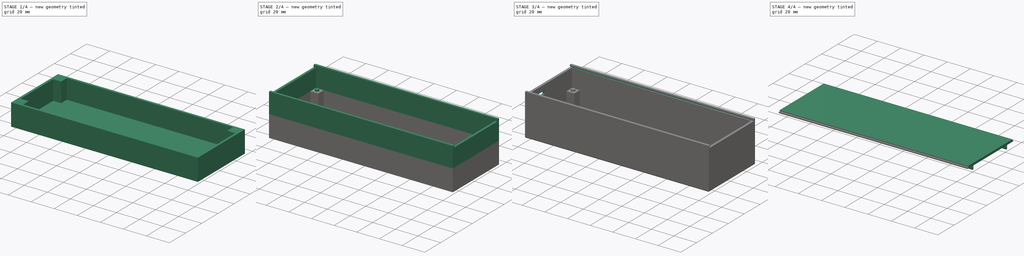
[diagram: build sequence overview — one tinted view per stage of 4, left to right]
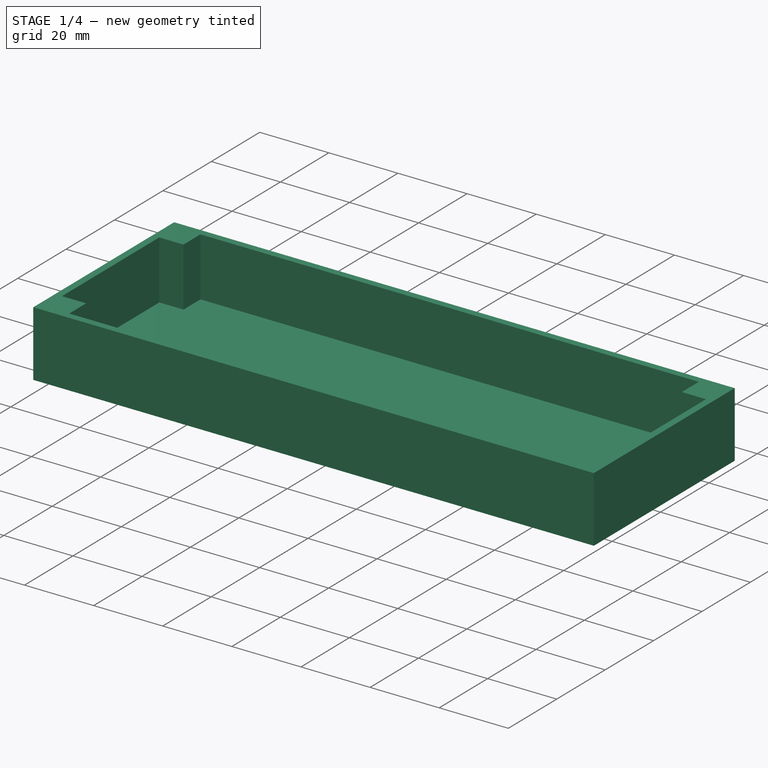
[diagram: stage 1 of 4 — iso view after this stage's code; geometry added in this stage tinted green]
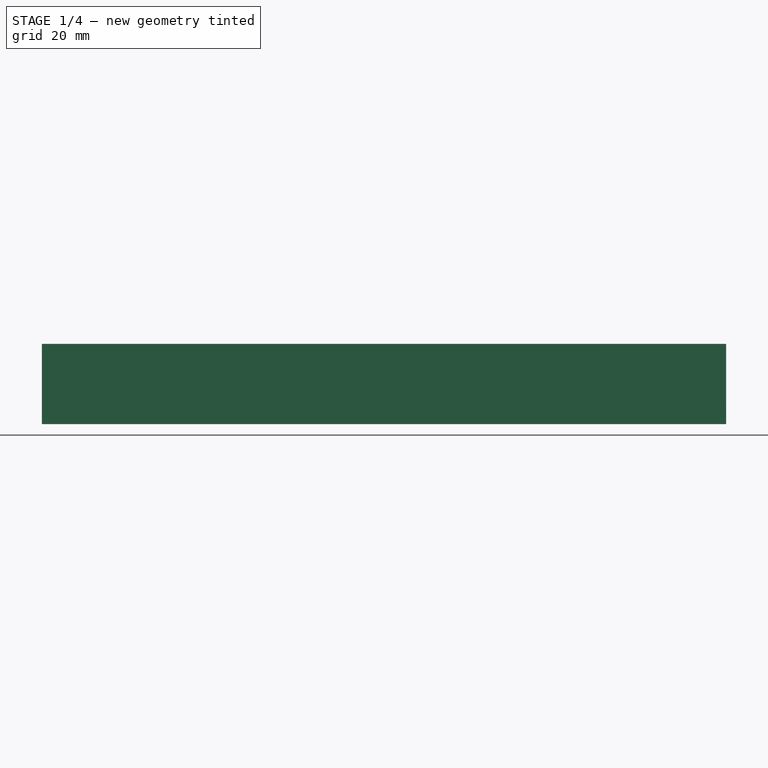
[diagram: stage 1 of 4 — front view after this stage's code; geometry added in this stage tinted green]
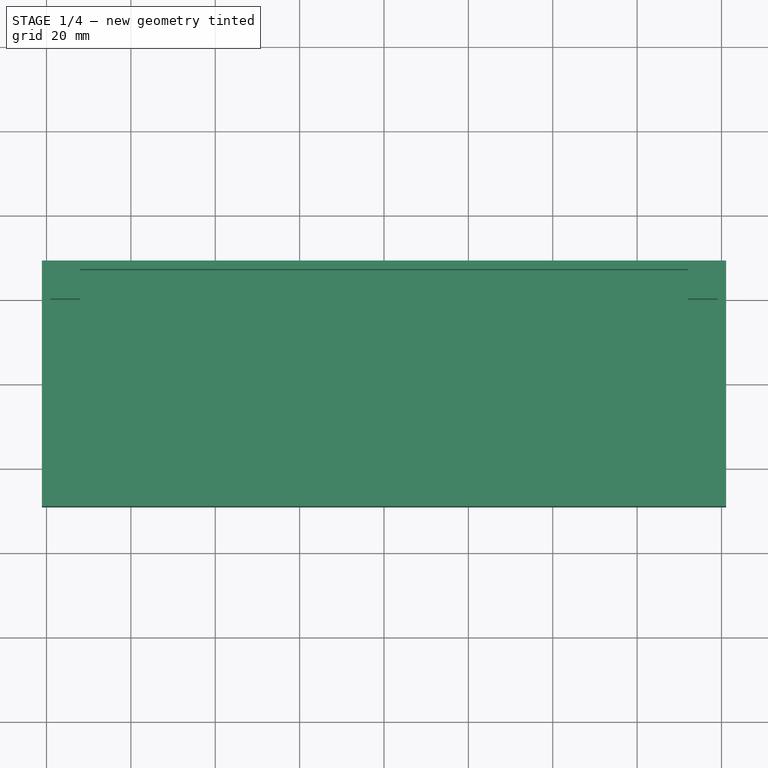
[diagram: stage 1 of 4 — top view after this stage's code; geometry added in this stage tinted green]
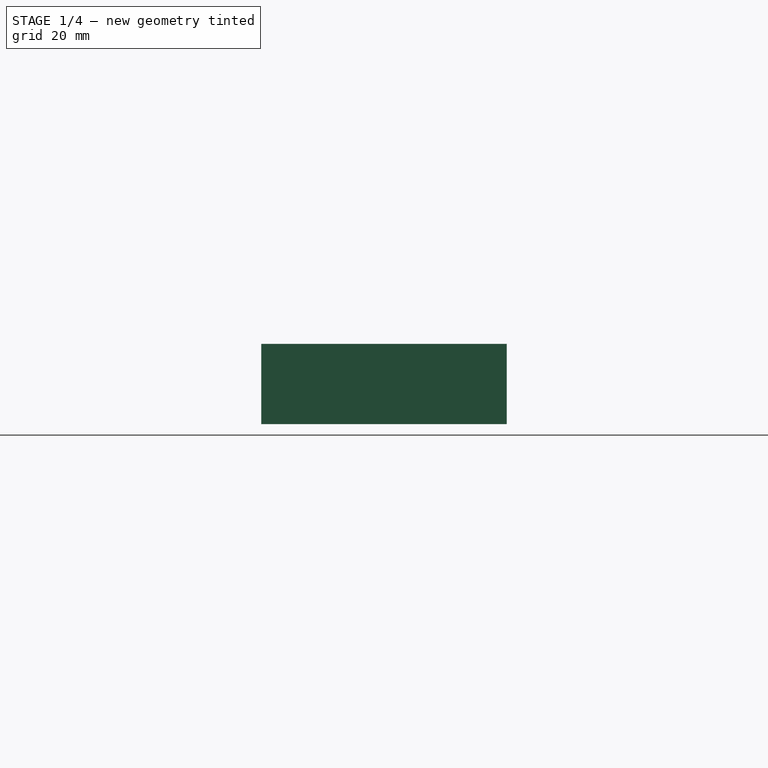
[diagram: stage 1 of 4 — right view after this stage's code; geometry added in this stage tinted green]
FCSTD DOCUMENT  (FreeCAD 0.20R29410 (Git))
Label: case2
License: All rights reserved
LicenseURL: http://en.wikipedia.org/wiki/All_rights_reserved
objects: Sketcher::SketchObject×11, PartDesign::ShapeBinder×7, PartDesign::Pad×7, PartDesign::Pocket×5, PartDesign::Body×2, Part::Feature×1, PartDesign::Fillet×1
note: 47 computed .brp shape members not serialized (recipe doc carries the construction recipe); baked Part::Feature solids carry a one-line shape summary decoded from their .brp

FEATURE [Part::Feature] Feature  label="clock_top"
  shape: bbox 158.1 x 54.08 x 46.42 mm, 23406 faces, 814 solids (baked)
FEATURE [PartDesign::ShapeBinder] ShapeBinder
  Support = -> [Feature]
  TraceSupport = false
FEATURE [PartDesign::ShapeBinder] ShapeBinder001
  Support = -> [Feature]
  TraceSupport = false
FEATURE [Sketcher::SketchObject] Sketch
  ExternalGeometry = -> [ShapeBinder]
  FullyConstrained = true
  MapMode = 5
  Placement = pos=(0,0,0) rot=(1,0,0;3.14159rad)
  Support = -> [ShapeBinder001]
  sketch-geometry (8):
    g0: LineSegment StartX=-79.1 StartY=27.1 StartZ=0 EndX=79.1 EndY=27.1 EndZ=0
    g1: LineSegment StartX=79.1 StartY=27.1 StartZ=0 EndX=79.1 EndY=-27.1 EndZ=0
    g2: LineSegment StartX=79.1 StartY=-27.1 StartZ=0 EndX=-79.1 EndY=-27.1 EndZ=0
    g3: LineSegment StartX=-79.1 StartY=-27.1 StartZ=0 EndX=-79.1 EndY=27.1 EndZ=0
    g4: LineSegment StartX=-81.1 StartY=29.1 StartZ=0 EndX=81.1 EndY=29.1 EndZ=0
    g5: LineSegment StartX=81.1 StartY=29.1 StartZ=0 EndX=81.1 EndY=-29.1 EndZ=0
    g6: LineSegment StartX=81.1 StartY=-29.1 StartZ=0 EndX=-81.1 EndY=-29.1 EndZ=0
    g7: LineSegment StartX=-81.1 StartY=-29.1 StartZ=0 EndX=-81.1 EndY=29.1 EndZ=0
  constraints (24):
    c: Coincident(g0,g1)
    c: Coincident(g1,g2)
    c: Coincident(g2,g3)
    c: Coincident(g3,g0)
    c: Horizontal(g0)
    c: Horizontal(g2)
    c: Vertical(g1)
    c: Vertical(g3)
    c: Distance(g-4,g2) = 0.1
    c: Distance(g-4,g1) = 0.1
    c: Distance(g-4,g3) = 0.1
    c: Distance(g-3,g0) = 0.1
    c: Coincident(g4,g5)
    c: Coincident(g5,g6)
    c: Coincident(g6,g7)
    c: Coincident(g7,g4)
    c: Horizontal(g4)
    c: Horizontal(g6)
    c: Vertical(g5)
    c: Vertical(g7)
    c: Distance(g2,g6) = 2
    c: Distance(g5,g1) = 2
    c: Distance(g0,g4) = 2
    c: Distance(g0,g7) = 2
FEATURE [PartDesign::Pad] Pad
  Direction = (0,0,-1)
  Length = 17
  Length2 = 10
  Profile = -> Sketch
  ReferenceAxis = -> Sketch [N_Axis]
  Type = 0
FEATURE [Sketcher::SketchObject] Sketch001
  ExternalGeometry = -> [Pad]
  FullyConstrained = true
  MapMode = 5
  Placement = pos=(0,0,-17) rot=(1,0,0;3.14159rad)
  Support = -> [Pad]
  sketch-geometry (4):
    g0: LineSegment StartX=-81.1 StartY=29.1 StartZ=0 EndX=81.1 EndY=29.1 EndZ=0
    g1: LineSegment StartX=81.1 StartY=29.1 StartZ=0 EndX=81.1 EndY=-29.1 EndZ=0
    g2: LineSegment StartX=81.1 StartY=-29.1 StartZ=0 EndX=-81.1 EndY=-29.1 EndZ=0
    g3: LineSegment StartX=-81.1 StartY=-29.1 StartZ=0 EndX=-81.1 EndY=29.1 EndZ=0
  constraints (10):
    c: Coincident(g0,g1)
    c: Coincident(g1,g2)
    c: Coincident(g2,g3)
    c: Coincident(g3,g0)
    c: Horizontal(g0)
    c: Horizontal(g2)
    c: Vertical(g1)
    c: Vertical(g3)
    c: Coincident(g0,g-4)
    c: Coincident(g1,g-3)
FEATURE [PartDesign::Pad] Pad001
  BaseFeature = -> Pad
  Direction = (0,0,-1)
  Length = 2
  Length2 = 10
  Profile = -> Sketch001
  ReferenceAxis = -> Sketch001 [N_Axis]
  Type = 0
FEATURE [Sketcher::SketchObject] Sketch002
  ExternalGeometry = -> [Pad001]
  FullyConstrained = true
  MapMode = 5
  Placement = pos=(0,0,-17) rot=(0,0,1;0rad)
  Support = -> [Pad001]
  sketch-geometry (16):
    g0: LineSegment StartX=-72.1 StartY=20.1 StartZ=0 EndX=-79.1 EndY=20.1 EndZ=0
    g1: LineSegment StartX=-79.1 StartY=20.1 StartZ=0 EndX=-79.1 EndY=27.1 EndZ=0
    g2: LineSegment StartX=-79.1 StartY=27.1 StartZ=0 EndX=-72.1 EndY=27.1 EndZ=0
    g3: LineSegment StartX=-72.1 StartY=27.1 StartZ=0 EndX=-72.1 EndY=20.1 EndZ=0
    g4: LineSegment StartX=79.1 StartY=20.1 StartZ=0 EndX=72.1 EndY=20.1 EndZ=0
    g5: LineSegment StartX=72.1 StartY=20.1 StartZ=0 EndX=72.1 EndY=27.1 EndZ=0
    g6: LineSegment StartX=72.1 StartY=27.1 StartZ=0 EndX=79.1 EndY=27.1 EndZ=0
    g7: LineSegment StartX=79.1 StartY=27.1 StartZ=0 EndX=79.1 EndY=20.1 EndZ=0
    g8: LineSegment StartX=-72.1 StartY=-27.1 StartZ=0 EndX=-79.1 EndY=-27.1 EndZ=0
    g9: LineSegment StartX=-79.1 StartY=-27.1 StartZ=0 EndX=-79.1 EndY=-20.1 EndZ=0
    g10: LineSegment StartX=-79.1 StartY=-20.1 StartZ=0 EndX=-72.1 EndY=-20.1 EndZ=0
    g11: LineSegment StartX=-72.1 StartY=-20.1 StartZ=0 EndX=-72.1 EndY=-27.1 EndZ=0
    g12: LineSegment StartX=79.1 StartY=-27.1 StartZ=0 EndX=72.1 EndY=-27.1 EndZ=0
    g13: LineSegment StartX=72.1 StartY=-27.1 StartZ=0 EndX=72.1 EndY=-20.1 EndZ=0
    g14: LineSegment StartX=72.1 StartY=-20.1 StartZ=0 EndX=79.1 EndY=-20.1 EndZ=0
    g15: LineSegment StartX=79.1 StartY=-20.1 StartZ=0 EndX=79.1 EndY=-27.1 EndZ=0
  constraints (44):
    c: Coincident(g0,g1)
    c: Coincident(g1,g2)
    c: Coincident(g2,g3)
    c: Coincident(g3,g0)
    c: Horizontal(g0)
    c: Horizontal(g2)
    c: Vertical(g1)
    c: Vertical(g3)
    c: Coincident(g1,g-3)
    c: Distance(g3) = 7
    c: Distance(g0) = 7
    c: Coincident(g4,g5)
    c: Coincident(g5,g6)
    c: Coincident(g6,g7)
    c: Coincident(g7,g4)
    c: Horizontal(g4)
    c: Horizontal(g6)
    c: Vertical(g5)
    c: Vertical(g7)
    c: Coincident(g-4,g6)
    c: Distance(g4) = 7
    c: Distance(g5) = 7
    c: Coincident(g8,g9)
    c: Coincident(g9,g10)
    c: Coincident(g10,g11)
    c: Coincident(g11,g8)
    c: Horizontal(g8)
    c: Horizontal(g10)
    c: Vertical(g9)
    c: Vertical(g11)
    c: Coincident(g-6,g8)
    c: Distance(g11) = 7
    c: Distance(g10) = 7
    c: Coincident(g12,g13)
    c: Coincident(g13,g14)
    c: Coincident(g14,g15)
    c: Coincident(g15,g12)
    c: Horizontal(g12)
    c: Horizontal(g14)
    c: Vertical(g13)
    c: Vertical(g15)
    c: Coincident(g-5,g12)
    c: Distance(g14) = 7
    c: Distance(g13) = 7
FEATURE [PartDesign::Pad] Pad002
  BaseFeature = -> Pad001
  Direction = (0,0,1)
  Length = 17
  Length2 = 10
  Profile = -> Sketch002
  ReferenceAxis = -> Sketch002 [N_Axis]
  Type = 0
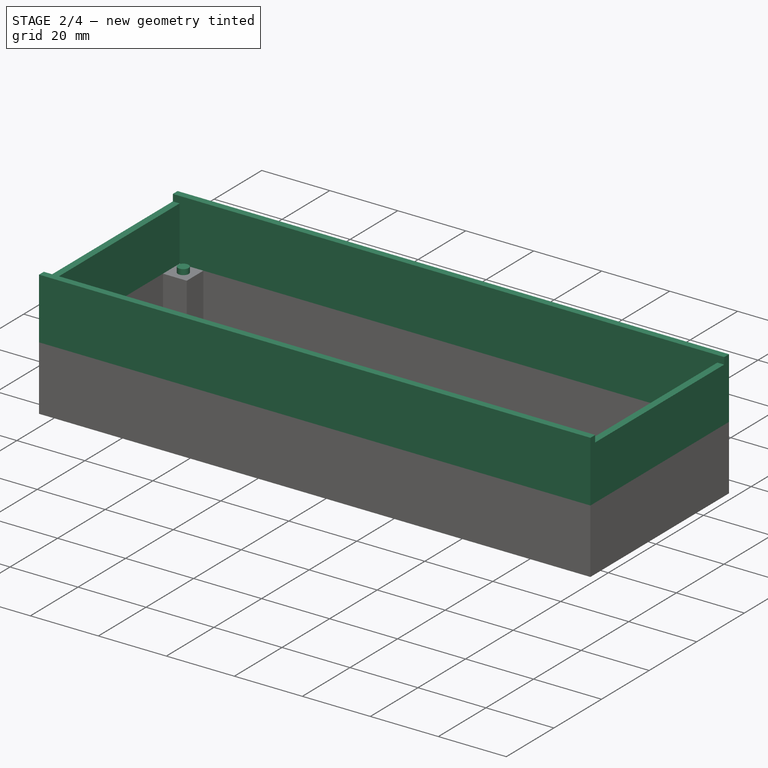
[diagram: stage 2 of 4 — iso view after this stage's code; geometry added in this stage tinted green]
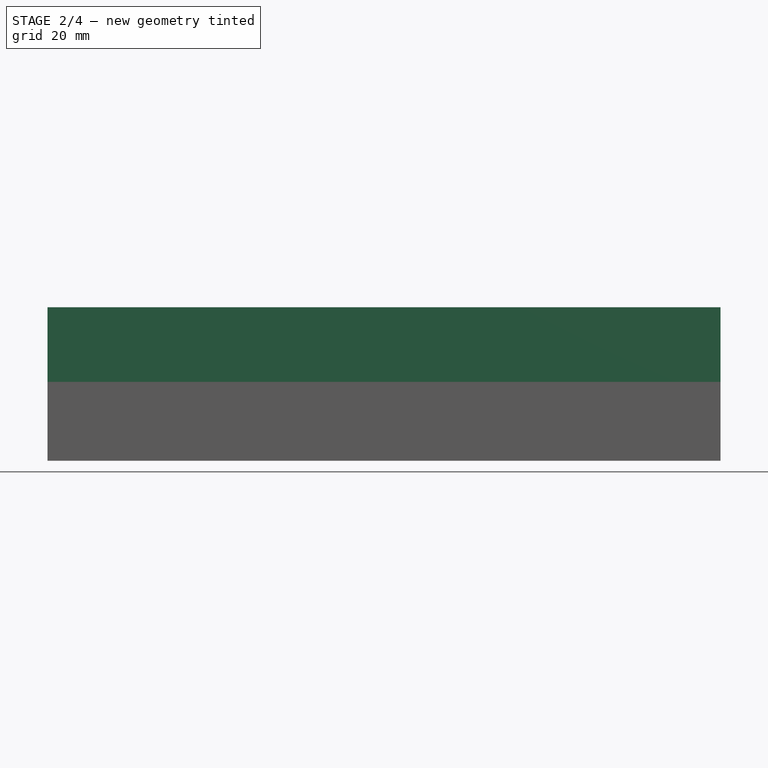
[diagram: stage 2 of 4 — front view after this stage's code; geometry added in this stage tinted green]
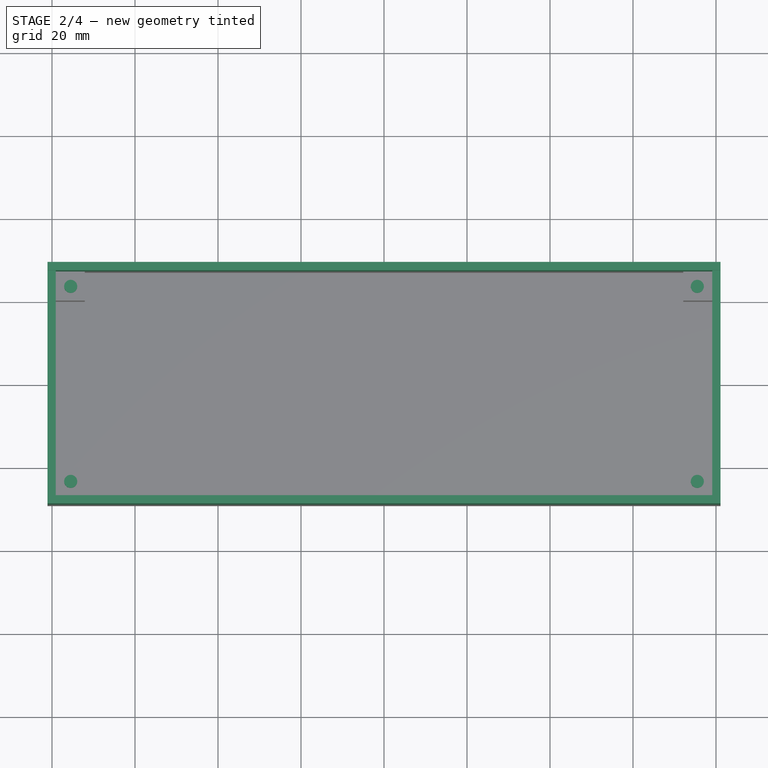
[diagram: stage 2 of 4 — top view after this stage's code; geometry added in this stage tinted green]
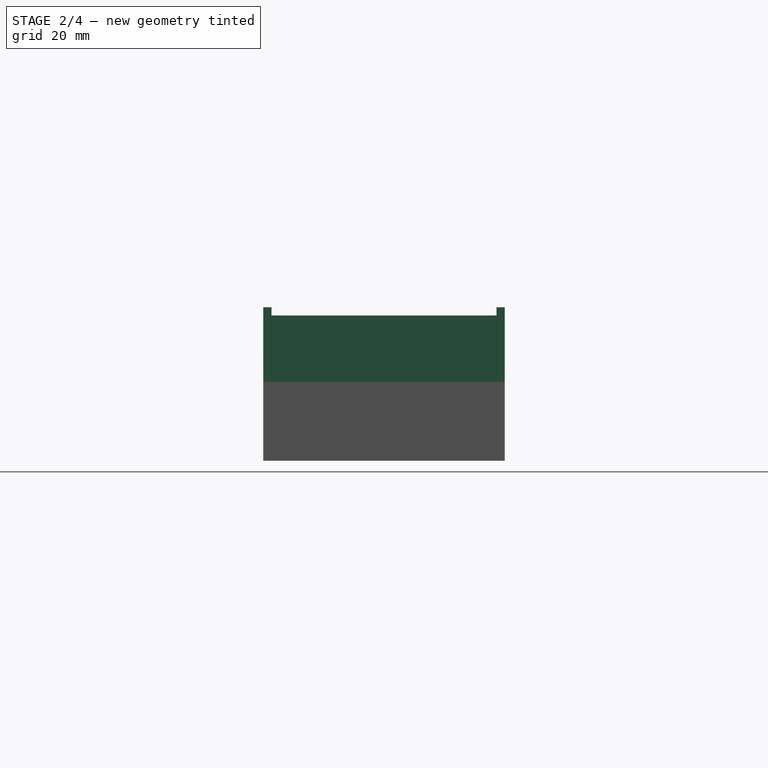
[diagram: stage 2 of 4 — right view after this stage's code; geometry added in this stage tinted green]
FEATURE [Sketcher::SketchObject] Sketch003
  ExternalGeometry = -> [ShapeBinder]
  FullyConstrained = true
  MapMode = 5
  Placement = pos=(0,0,3.6e-15) rot=(0,0,1;0rad)
  Support = -> [Pad002]
  sketch-geometry (4):
    g0: Circle CenterX=-75.5 CenterY=23.5 CenterZ=0 NormalX=0 NormalY=0 NormalZ=1 AngleXU=0 Radius=1.575
    g1: Circle CenterX=-75.5 CenterY=-23.5 CenterZ=0 NormalX=0 NormalY=0 NormalZ=1 AngleXU=0 Radius=1.575
    g2: Circle CenterX=75.5 CenterY=-23.5 CenterZ=0 NormalX=0 NormalY=0 NormalZ=1 AngleXU=0 Radius=1.575
    g3: Circle CenterX=75.5 CenterY=23.5 CenterZ=0 NormalX=0 NormalY=0 NormalZ=1 AngleXU=0 Radius=1.575
  constraints (8):
    c: Coincident(g-3,g0)
    c: Diameter(g0) = 3.15
    c: Coincident(g-4,g1)
    c: Diameter(g1) = 3.15
    c: Coincident(g-5,g2)
    c: Diameter(g2) = 3.15
    c: Coincident(g3,g-6)
    c: Diameter(g3) = 3.15
FEATURE [PartDesign::Pad] Pad003
  BaseFeature = -> Pad002
  Direction = (0,0,1)
  Length = 1.6
  Length2 = 10
  Profile = -> Sketch003
  ReferenceAxis = -> Sketch003 [N_Axis]
  Type = 0
FEATURE [Sketcher::SketchObject] Sketch004
  ExternalGeometry = -> [Pad003]
  FullyConstrained = true
  MapMode = 5
  Support = -> [Pad003]
  sketch-geometry (8):
    g0: LineSegment StartX=-79.1 StartY=27.1 StartZ=0 EndX=79.1 EndY=27.1 EndZ=0
    g1: LineSegment StartX=79.1 StartY=27.1 StartZ=0 EndX=79.1 EndY=-27.1 EndZ=0
    g2: LineSegment StartX=79.1 StartY=-27.1 StartZ=0 EndX=-79.1 EndY=-27.1 EndZ=0
    g3: LineSegment StartX=-79.1 StartY=-27.1 StartZ=0 EndX=-79.1 EndY=27.1 EndZ=0
    g4: LineSegment StartX=-81.1 StartY=29.1 StartZ=0 EndX=81.1 EndY=29.1 EndZ=0
    g5: LineSegment StartX=81.1 StartY=29.1 StartZ=0 EndX=81.1 EndY=-29.1 EndZ=0
    g6: LineSegment StartX=81.1 StartY=-29.1 StartZ=0 EndX=-81.1 EndY=-29.1 EndZ=0
    g7: LineSegment StartX=-81.1 StartY=-29.1 StartZ=0 EndX=-81.1 EndY=29.1 EndZ=0
  constraints (20):
    c: Coincident(g0,g1)
    c: Coincident(g1,g2)
    c: Coincident(g2,g3)
    c: Coincident(g3,g0)
    c: Horizontal(g0)
    c: Horizontal(g2)
    c: Vertical(g1)
    c: Vertical(g3)
    c: Coincident(g4,g5)
    c: Coincident(g5,g6)
    c: Coincident(g6,g7)
    c: Coincident(g7,g4)
    c: Horizontal(g4)
    c: Horizontal(g6)
    c: Vertical(g5)
    c: Vertical(g7)
    c: Coincident(g0,g-4)
    c: Coincident(g4,g-5)
    c: Coincident(g1,g-6)
    c: Coincident(g5,g-7)
FEATURE [PartDesign::Pad] Pad004
  BaseFeature = -> Pad003
  Direction = (0,0,1)
  Length = 16
  Length2 = 10
  Profile = -> Sketch004
  ReferenceAxis = -> Sketch004 [N_Axis]
  Type = 0
FEATURE [Sketcher::SketchObject] Sketch005
  ExternalGeometry = -> [Pad004]
  FullyConstrained = true
  MapMode = 5
  Placement = pos=(0,0,16) rot=(0,0,1;0rad)
  Support = -> [Pad004]
  sketch-geometry (8):
    g0: LineSegment StartX=-81.1 StartY=-29.1 StartZ=0 EndX=81.1 EndY=-29.1 EndZ=0
    g1: LineSegment StartX=81.1 StartY=-29.1 StartZ=0 EndX=81.1 EndY=-27.1 EndZ=0
    g2: LineSegment StartX=81.1 StartY=-27.1 StartZ=0 EndX=-81.1 EndY=-27.1 EndZ=0
    g3: LineSegment StartX=-81.1 StartY=-27.1 StartZ=0 EndX=-81.1 EndY=-29.1 EndZ=0
    g4: LineSegment StartX=81.1 StartY=29.1 StartZ=0 EndX=-81.1 EndY=29.1 EndZ=0
    g5: LineSegment StartX=-81.1 StartY=29.1 StartZ=0 EndX=-81.1 EndY=27.1 EndZ=0
    g6: LineSegment StartX=-81.1 StartY=27.1 StartZ=0 EndX=81.1 EndY=27.1 EndZ=0
    g7: LineSegment StartX=81.1 StartY=27.1 StartZ=0 EndX=81.1 EndY=29.1 EndZ=0
  constraints (22):
    c: Coincident(g0,g1)
    c: Coincident(g1,g2)
    c: Coincident(g2,g3)
    c: Coincident(g3,g0)
    c: Horizontal(g0)
    c: Horizontal(g2)
    c: Vertical(g1)
    c: Vertical(g3)
    c: Coincident(g0,g-4)
    c: PointOnObject(g-3,g2)
    c: PointOnObject(g1,g-6)
    c: Coincident(g4,g5)
    c: Coincident(g5,g6)
    c: Coincident(g6,g7)
    c: Coincident(g7,g4)
    c: Horizontal(g4)
    c: Horizontal(g6)
    c: Vertical(g5)
    c: Vertical(g7)
    c: Coincident(g4,g-6)
    c: PointOnObject(g4,g-9)
    c: PointOnObject(g-10,g6)
FEATURE [PartDesign::Pad] Pad005
  BaseFeature = -> Pad004
  Direction = (0,0,1)
  Length = 2
  Length2 = 10
  Profile = -> Sketch005
  ReferenceAxis = -> Sketch005 [N_Axis]
  Type = 0
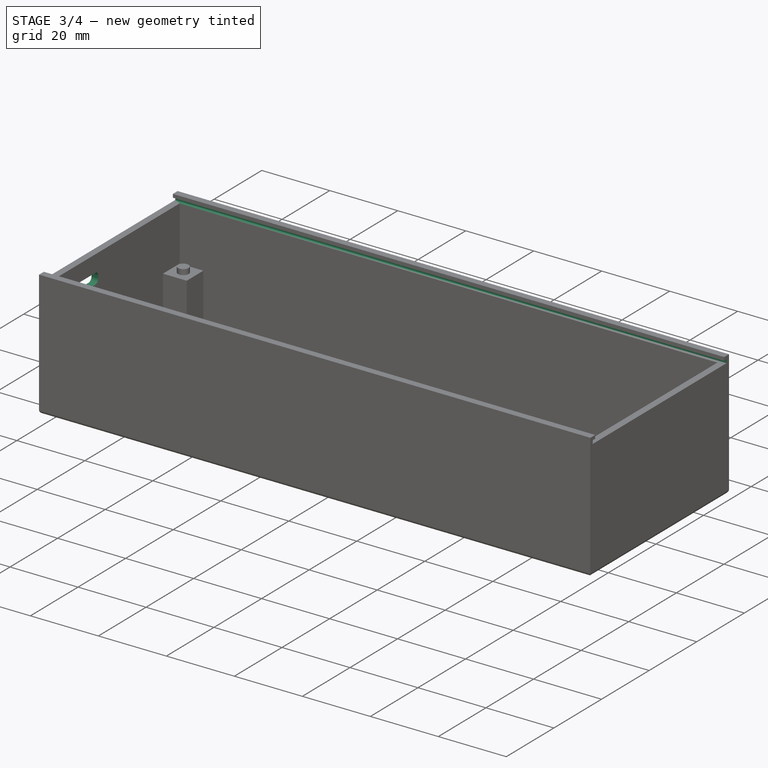
[diagram: stage 3 of 4 — iso view after this stage's code; geometry added in this stage tinted green]
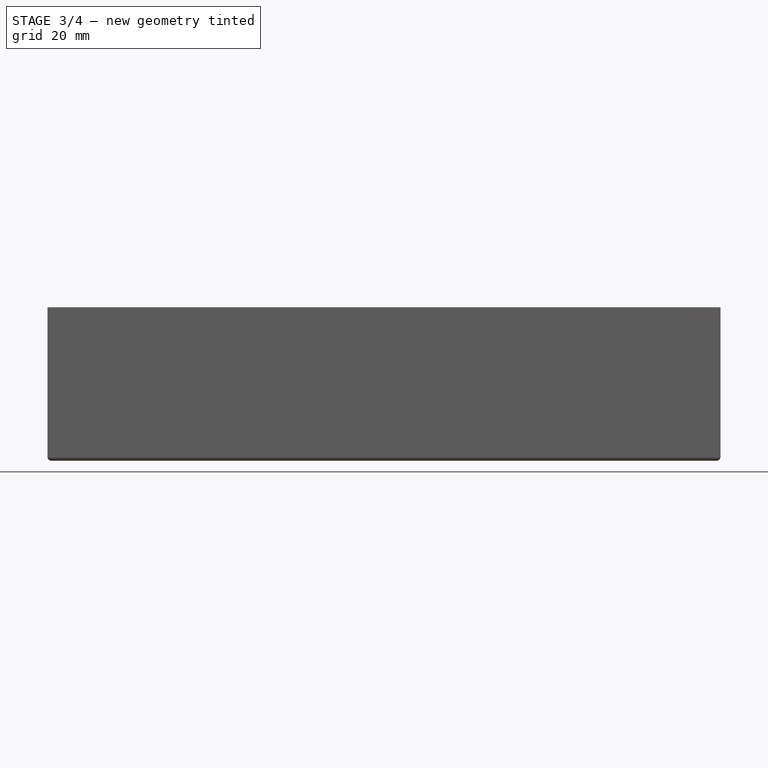
[diagram: stage 3 of 4 — front view after this stage's code; geometry added in this stage tinted green]
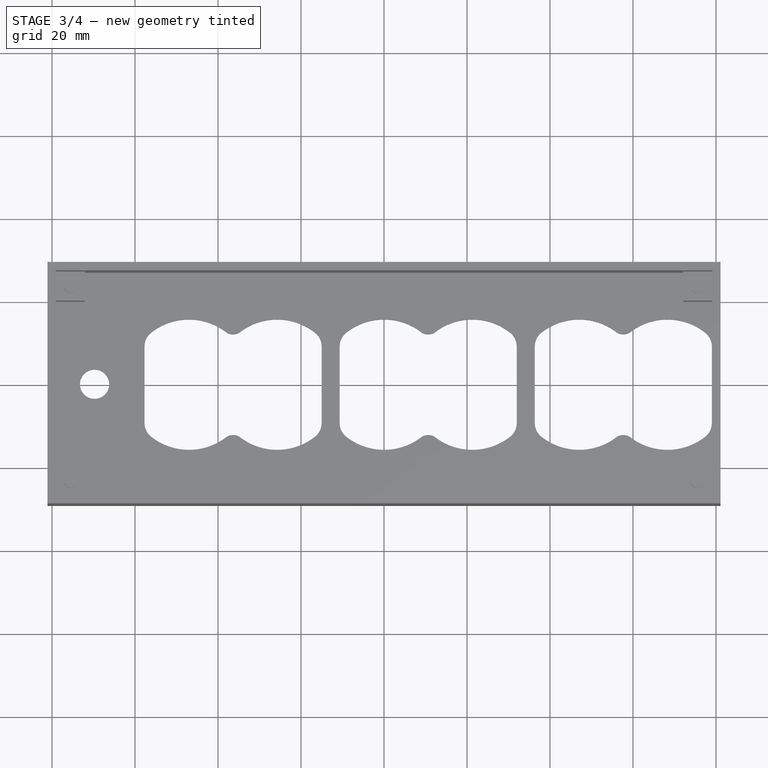
[diagram: stage 3 of 4 — top view after this stage's code; geometry added in this stage tinted green]
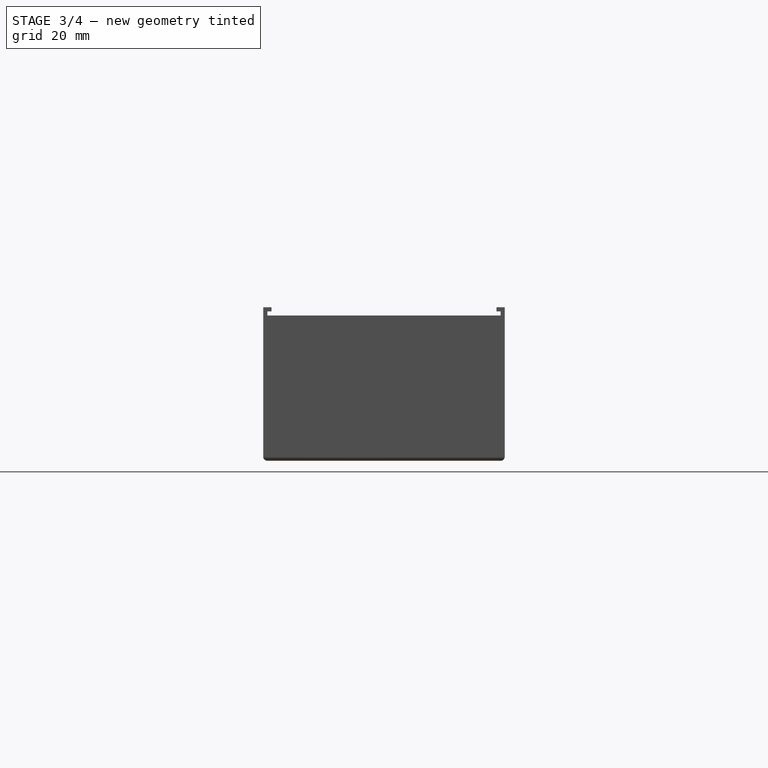
[diagram: stage 3 of 4 — right view after this stage's code; geometry added in this stage tinted green]
FEATURE [Sketcher::SketchObject] Sketch006
  ExternalGeometry = -> [Pad005]
  FullyConstrained = true
  MapMode = 5
  Placement = pos=(81.1,0,0) rot=(0.57735,0.57735,0.57735;2.0944rad)
  Support = -> [Pad005]
  sketch-geometry (8):
    g0: LineSegment StartX=-27.1 StartY=16 StartZ=0 EndX=-28.1 EndY=16 EndZ=0
    g1: LineSegment StartX=-28.1 StartY=16 StartZ=0 EndX=-28.1 EndY=17 EndZ=0
    g2: LineSegment StartX=-28.1 StartY=17 StartZ=0 EndX=-27.1 EndY=17 EndZ=0
    g3: LineSegment StartX=-27.1 StartY=17 StartZ=0 EndX=-27.1 EndY=16 EndZ=0
    g4: LineSegment StartX=27.1 StartY=16 StartZ=0 EndX=28.1 EndY=16 EndZ=0
    g5: LineSegment StartX=28.1 StartY=16 StartZ=0 EndX=28.1 EndY=17 EndZ=0
    g6: LineSegment StartX=28.1 StartY=17 StartZ=0 EndX=27.1 EndY=17 EndZ=0
    g7: LineSegment StartX=27.1 StartY=17 StartZ=0 EndX=27.1 EndY=16 EndZ=0
  constraints (24):
    c: Coincident(g0,g1)
    c: Coincident(g1,g2)
    c: Coincident(g2,g3)
    c: Coincident(g3,g0)
    c: Horizontal(g0)
    c: Horizontal(g2)
    c: Vertical(g1)
    c: Vertical(g3)
    c: PointOnObject(g0,g-3)
    c: Coincident(g4,g5)
    c: Coincident(g5,g6)
    c: Coincident(g6,g7)
    c: Coincident(g7,g4)
    c: Horizontal(g4)
    c: Horizontal(g6)
    c: Vertical(g5)
    c: Vertical(g7)
    c: PointOnObject(g4,g-7)
    c: PointOnObject(g0,g-6)
    c: Distance(g2,g-4) = 1
    c: Distance(g1,g-5) = 1
    c: PointOnObject(g4,g-8)
    c: Distance(g5,g-10) = 1
    c: Distance(g5,g-9) = 1
FEATURE [PartDesign::Pocket] Pocket
  BaseFeature = -> Pad005
  Direction = (-1,0,0)
  Length = 5
  Length2 = 5
  Profile = -> Sketch006
  ReferenceAxis = -> Sketch006 [N_Axis]
  Type = 1
FEATURE [PartDesign::ShapeBinder] ShapeBinder002
  Support = -> [Feature]
  TraceSupport = false
FEATURE [Sketcher::SketchObject] Sketch007
  ExternalGeometry = -> [ShapeBinder002]
  FullyConstrained = false
  MapMode = 5
  Placement = pos=(0,0,-19) rot=(1,0,0;3.14159rad)
  Support = -> [Pocket]
  sketch-geometry (37):
    g0: LineSegment StartX=36.34 StartY=9.12121 StartZ=0 EndX=36.34 EndY=-9.37121 EndZ=0
    g1: ArcOfCircle CenterX=40.54 CenterY=-9.37121 CenterZ=0 NormalX=0 NormalY=0 NormalZ=1 AngleXU=0 Radius=4.2 StartAngle=3.14159 EndAngle=4.04486
    g2: ArcOfCircle CenterX=47.04 CenterY=-1.125 CenterZ=0 NormalX=0 NormalY=0 NormalZ=1 AngleXU=0 Radius=14.7 StartAngle=4.04486 EndAngle=5.37988
    g3: LineSegment StartX=79 StartY=9.12121 StartZ=0 EndX=79 EndY=-9.37121 EndZ=0
    g4: ArcOfCircle CenterX=74.8 CenterY=-9.37121 CenterZ=0 NormalX=0 NormalY=0 NormalZ=1 AngleXU=0 Radius=4.2 StartAngle=5.37992 EndAngle=6.28319
    g5: ArcOfCircle CenterX=68.3 CenterY=-1.125 CenterZ=0 NormalX=0 NormalY=0 NormalZ=1 AngleXU=0 Radius=14.7 StartAngle=4.0448 EndAngle=5.37992
    g6: ArcOfCircle CenterX=74.8 CenterY=9.12121 CenterZ=0 NormalX=0 NormalY=0 NormalZ=1 AngleXU=0 Radius=4.2 StartAngle=-8.3527e-11 EndAngle=0.903372
    g7: ArcOfCircle CenterX=40.54 CenterY=9.12121 CenterZ=0 NormalX=0 NormalY=0 NormalZ=1 AngleXU=0 Radius=4.2 StartAngle=2.23833 EndAngle=3.14159
    g8: LineSegment StartX=31.98 StartY=9.12117 StartZ=0 EndX=31.98 EndY=-9.37126 EndZ=0
    g9: ArcOfCircle CenterX=27.78 CenterY=9.12121 CenterZ=0 NormalX=0 NormalY=0 NormalZ=1 AngleXU=0 Radius=4.2 StartAngle=6.28317 EndAngle=7.18648
    g10: ArcOfCircle CenterX=21.28 CenterY=0.875 CenterZ=0 NormalX=0 NormalY=0 NormalZ=1 AngleXU=0 Radius=14.7 StartAngle=0.903274 EndAngle=2.24308
    g11: ArcOfCircle CenterX=27.78 CenterY=-9.37121 CenterZ=0 NormalX=0 NormalY=0 NormalZ=1 AngleXU=0 Radius=4.2 StartAngle=5.37992 EndAngle=6.28317
    g12: ArcOfCircle CenterX=21.28 CenterY=-1.125 CenterZ=0 NormalX=0 NormalY=0 NormalZ=1 AngleXU=0 Radius=14.7 StartAngle=4.04345 EndAngle=5.37992
    g13: LineSegment StartX=-10.68 StartY=9.11777 StartZ=0 EndX=-10.68 EndY=-9.37465 EndZ=0
    g14: ArcOfCircle CenterX=-6.48 CenterY=-9.37121 CenterZ=0 NormalX=0 NormalY=0 NormalZ=1 AngleXU=0 Radius=4.2 StartAngle=3.14241 EndAngle=4.04488
    g15: ArcOfCircle CenterX=0.02 CenterY=-1.125 CenterZ=0 NormalX=0 NormalY=0 NormalZ=1 AngleXU=0 Radius=14.7 StartAngle=4.04487 EndAngle=5.38404
    g16: ArcOfCircle CenterX=-6.48 CenterY=9.12121 CenterZ=0 NormalX=0 NormalY=0 NormalZ=1 AngleXU=0 Radius=4.2 StartAngle=2.23827 EndAngle=3.14241
    g17: ArcOfCircle CenterX=0.02 CenterY=0.875 CenterZ=0 NormalX=0 NormalY=0 NormalZ=1 AngleXU=0 Radius=14.7 StartAngle=0.898677 EndAngle=2.23831
    g18: ArcOfCircle CenterX=10.6504 CenterY=15.0431 CenterZ=0 NormalX=0 NormalY=0 NormalZ=1 AngleXU=0 Radius=3.04744 StartAngle=4.20621 EndAngle=5.21757
    g19: ArcOfCircle CenterX=10.6439 CenterY=-15.2701 CenterZ=0 NormalX=0 NormalY=0 NormalZ=1 AngleXU=0 Radius=3.02305 StartAngle=1.04405 EndAngle=2.08105
    g20: ArcOfCircle CenterX=68.3 CenterY=0.875 CenterZ=0 NormalX=0 NormalY=0 NormalZ=1 AngleXU=0 Radius=14.7 StartAngle=0.903297 EndAngle=2.23833
    g21: ArcOfCircle CenterX=47.04 CenterY=0.875 CenterZ=0 NormalX=0 NormalY=0 NormalZ=1 AngleXU=0 Radius=14.7 StartAngle=0.904609 EndAngle=2.23833
    g22: ArcOfCircle CenterX=57.6723 CenterY=14.963 CenterZ=0 NormalX=0 NormalY=0 NormalZ=1 AngleXU=0 Radius=2.96685 StartAngle=4.16354 EndAngle=5.25327
    g23: ArcOfCircle CenterX=57.6702 CenterY=-15.2624 CenterZ=0 NormalX=0 NormalY=0 NormalZ=1 AngleXU=0 Radius=3.01055 StartAngle=1.03804 EndAngle=2.10415
    g24: LineSegment StartX=-15.04 StartY=9.12121 StartZ=0 EndX=-15.04 EndY=-9.37121 EndZ=0
    g25: LineSegment StartX=-57.7 StartY=9.12124 StartZ=0 EndX=-57.7 EndY=-9.37118 EndZ=0
    g26: ArcOfCircle CenterX=-53.5 CenterY=-9.37121 CenterZ=0 NormalX=0 NormalY=0 NormalZ=1 AngleXU=0 Radius=4.2 StartAngle=3.14158 EndAngle=4.04486
    g27: ArcOfCircle CenterX=-47 CenterY=-1.125 CenterZ=0 NormalX=0 NormalY=0 NormalZ=1 AngleXU=0 Radius=14.7 StartAngle=4.04486 EndAngle=5.37987
    g28: ArcOfCircle CenterX=-53.5 CenterY=9.12121 CenterZ=0 NormalX=0 NormalY=0 NormalZ=1 AngleXU=0 Radius=4.2 StartAngle=2.23831 EndAngle=3.14158
    g29: ArcOfCircle CenterX=-47 CenterY=0.875 CenterZ=0 NormalX=0 NormalY=0 NormalZ=1 AngleXU=0 Radius=14.7 StartAngle=0.902885 EndAngle=2.23832
    g30: ArcOfCircle CenterX=-19.24 CenterY=9.12121 CenterZ=0 NormalX=0 NormalY=0 NormalZ=1 AngleXU=0 Radius=4.2 StartAngle=6.28319 EndAngle=7.18645
    g31: ArcOfCircle CenterX=-25.74 CenterY=0.875 CenterZ=0 NormalX=0 NormalY=0 NormalZ=1 AngleXU=0 Radius=14.7 StartAngle=0.903267 EndAngle=2.23859
    g32: ArcOfCircle CenterX=-19.24 CenterY=-9.37121 CenterZ=0 NormalX=0 NormalY=0 NormalZ=1 AngleXU=0 Radius=4.2 StartAngle=5.37992 EndAngle=6.28319
    g33: ArcOfCircle CenterX=-25.74 CenterY=-1.125 CenterZ=0 NormalX=0 NormalY=0 NormalZ=1 AngleXU=0 Radius=14.7 StartAngle=4.04485 EndAngle=5.37992
    g34: ArcOfCircle CenterX=-36.3702 CenterY=14.9589 CenterZ=0 NormalX=0 NormalY=0 NormalZ=1 AngleXU=0 Radius=2.96509 StartAngle=4.17203 EndAngle=5.25348
    g35: ArcOfCircle CenterX=-36.3699 CenterY=-15.2173 CenterZ=0 NormalX=0 NormalY=0 NormalZ=1 AngleXU=0 Radius=2.97169 StartAngle=1.03006 EndAngle=2.11189
    g36: Circle CenterX=-69.75 CenterY=-0.2375 CenterZ=0 NormalX=0 NormalY=0 NormalZ=1 AngleXU=0 Radius=3.51769
  constraints (80):
    c: Vertical(g0)
    c: Distance(g-7,g0) = 0.2
    c: Horizontal(g0,g-7)
    c: Equal(g-7,g0)
    c: Coincident(g1,g-8)
    c: Coincident(g2,g-10)
    c: Coincident(g1,g0)
    c: Tangent(g1,g2) = -1.5708
    c: Vertical(g3)
    c: Distance(g3,g-18) = 0.2
    c: Equal(g-18,g3)
    c: Coincident(g4,g-17)
    c: Coincident(g5,g-16)
    c: Coincident(g6,g-19)
    c: Tangent(g5,g4) = -1.5708
    c: Coincident(g7,g-6)
    c: Coincident(g7,g0)
    c: Coincident(g3,g4)
    c: Coincident(g6,g3)
    c: Vertical(g8)
    c: Equal(g8,g-23)
    c: Distance(g8,g-23) = 0.2
    c: Coincident(g9,g-24)
    c: Coincident(g9,g8)
    c: Coincident(g10,g-26)
    c: Coincident(g10,g9)
    c: Coincident(g11,g-33)
    c: Coincident(g11,g8)
    c: Coincident(g12,g-32)
    c: Coincident(g12,g11)
    c: Vertical(g13)
    c: Distance(g13,g-38) = 0.2
    c: Equal(g-38,g13)
    c: Coincident(g14,g-37)
    c: Coincident(g14,g13)
    c: Coincident(g15,g-36)
    c: Coincident(g15,g14)
    c: Coincident(g16,g-39)
    c: Coincident(g16,g13)
    c: Coincident(g17,g-41)
    c: Coincident(g17,g16)
    c: Coincident(g18,g17)
    c: Coincident(g18,g10)
    c: Coincident(g19,g12)
    c: Coincident(g15,g19)
    c: Coincident(g20,g-21)
    c: Coincident(g20,g6)
    c: Coincident(g21,g-5)
    c: Coincident(g21,g7)
    c: Coincident(g22,g21)
    c: Coincident(g20,g22)
    c: Coincident(g23,g2)
    c: Coincident(g23,g5)
    c: Vertical(g24)
    c: Vertical(g25)
    c: Equal(g25,g-60)
    c: Equal(g24,g-51)
    c: Distance(g24,g-51) = 0.2
    c: Distance(g25,g-60) = 0.2
    c: Coincident(g26,g-59)
    c: Coincident(g26,g25)
    c: Coincident(g27,g-58)
    c: Coincident(g27,g26)
    c: Coincident(g28,g-61)
    c: Coincident(g28,g25)
    c: Coincident(g29,g-62)
    c: Coincident(g29,g28)
    c: Coincident(g30,g-52)
    c: Coincident(g30,g24)
    c: Coincident(g31,g-54)
    c: Coincident(g31,g30)
    c: Coincident(g32,g-43)
    c: Coincident(g32,g24)
    c: Coincident(g33,g-45)
    c: Coincident(g33,g32)
    c: Coincident(g31,g34)
    c: Coincident(g29,g34)
    c: Coincident(g27,g35)
    c: Coincident(g35,g33)
    c: Coincident(g36,g-67)
FEATURE [PartDesign::Pocket] Pocket001
  BaseFeature = -> Pocket
  Direction = (0,0,1)
  Length = 2
  Length2 = 5
  Profile = -> Sketch007
  ReferenceAxis = -> Sketch007 [N_Axis]
  Type = 0
FEATURE [PartDesign::Fillet] Fillet
  Base = -> Pocket001 [Edge38,Edge26,Edge34,Edge16]
  BaseFeature = -> Pocket001
  Radius = 1
  SupportTransform = false
  UseAllEdges = false
FEATURE [PartDesign::ShapeBinder] ShapeBinder003
  Support = -> [Feature]
  TraceSupport = false
FEATURE [PartDesign::Pocket] Pocket002
  BaseFeature = -> Fillet
  Direction = (-1,0,0)
  Length = 5
  Length2 = 5
  Profile = -> ShapeBinder003
  Type = 1
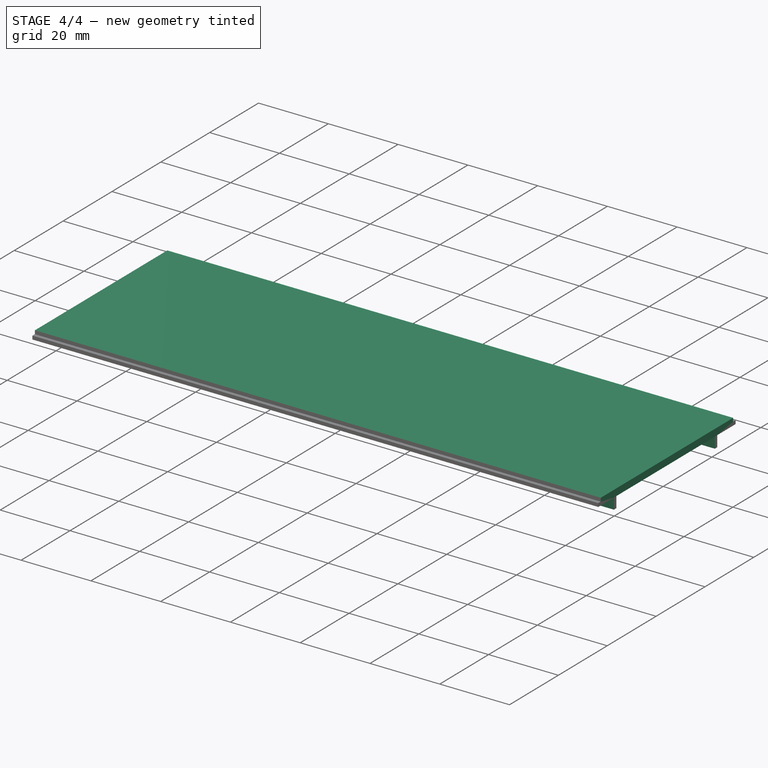
[diagram: stage 4 of 4 — iso view after this stage's code; geometry added in this stage tinted green]
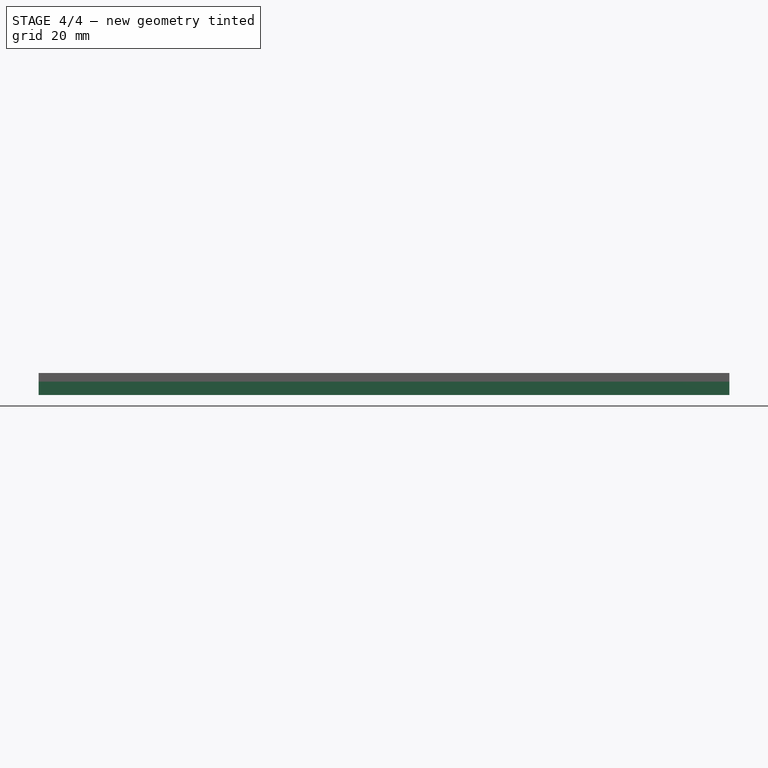
[diagram: stage 4 of 4 — front view after this stage's code; geometry added in this stage tinted green]
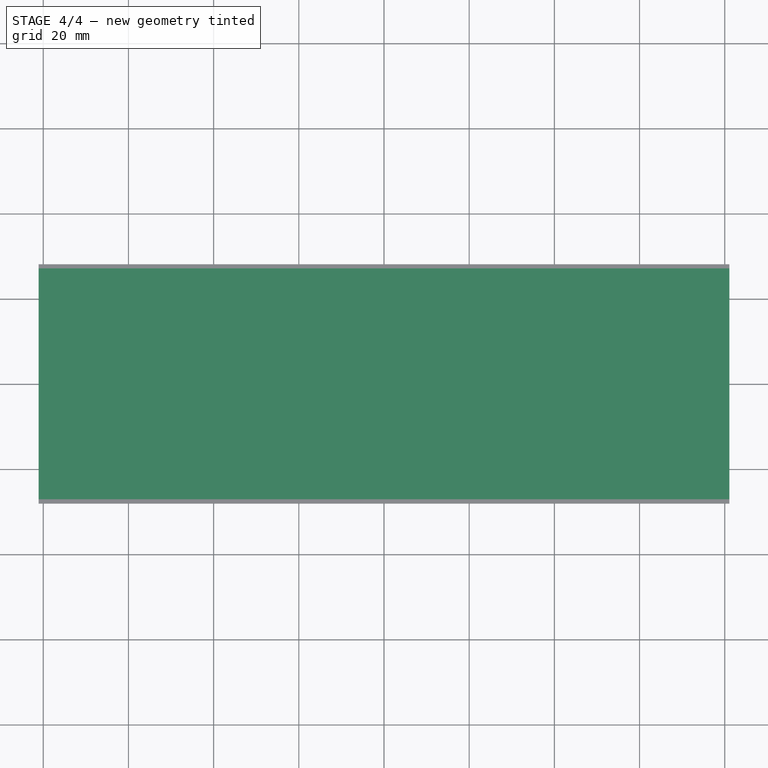
[diagram: stage 4 of 4 — top view after this stage's code; geometry added in this stage tinted green]
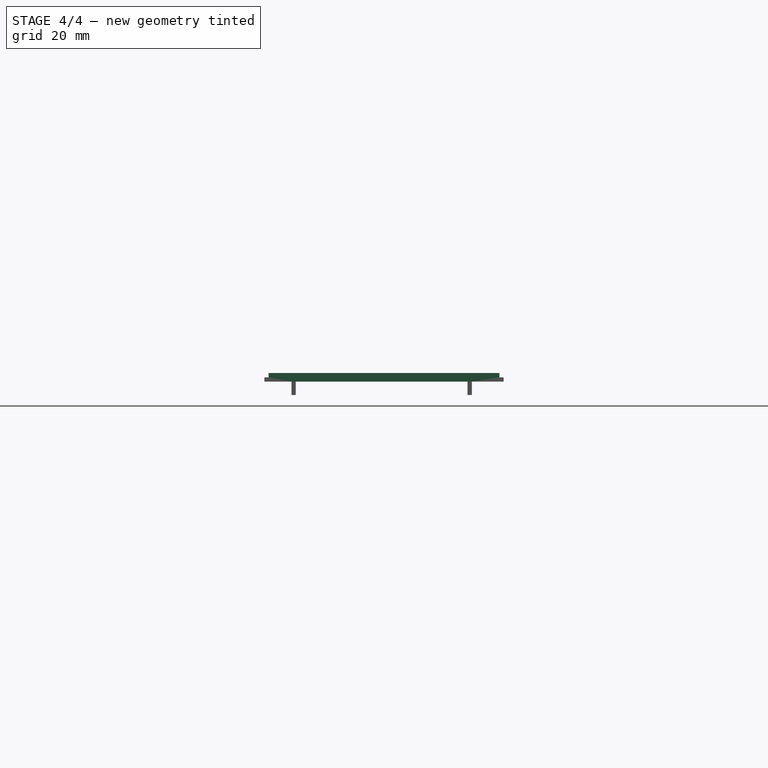
[diagram: stage 4 of 4 — right view after this stage's code; geometry added in this stage tinted green]
FEATURE [Sketcher::SketchObject] Sketch008
  ExternalGeometry = -> [Pocket002]
  FullyConstrained = false
  MapMode = 5
  Placement = pos=(-81.1,0,0) rot=(0.57735,-0.57735,-0.57735;2.0944rad)
  Support = -> [Pocket002]
  sketch-geometry (8):
    g0: LineSegment StartX=8.34 StartY=12.73 StartZ=0 EndX=14.7613 EndY=12.73 EndZ=0
    g1: LineSegment StartX=8.34 StartY=6.23 StartZ=0 EndX=14.7705 EndY=6.23 EndZ=0
    g2: ArcOfCircle CenterX=8.34 CenterY=9.78 CenterZ=0 NormalX=0 NormalY=0 NormalZ=1 AngleXU=0 Radius=2.95 StartAngle=1.5708 EndAngle=3.14159
    g3: ArcOfCircle CenterX=8.34 CenterY=9.18 CenterZ=0 NormalX=0 NormalY=0 NormalZ=1 AngleXU=0 Radius=2.95 StartAngle=3.14159 EndAngle=4.71239
    g4: LineSegment StartX=5.39 StartY=9.78 StartZ=0 EndX=5.39 EndY=9.18 EndZ=0
    g5: ArcOfCircle CenterX=14.72 CenterY=9.78 CenterZ=0 NormalX=0 NormalY=0 NormalZ=1 AngleXU=0 Radius=2.95029 StartAngle=6.26918 EndAngle=7.83998
    g6: ArcOfCircle CenterX=14.72 CenterY=9.18 CenterZ=0 NormalX=0 NormalY=0 NormalZ=1 AngleXU=0 Radius=2.95043 StartAngle=4.72952 EndAngle=6.30031
    g7: LineSegment StartX=17.67 StartY=9.73869 StartZ=0 EndX=17.67 EndY=9.23054 EndZ=0
  constraints (22):
    c: Horizontal(g0)
    c: Horizontal(g1)
    c: Distance(g0,g1) = 6.5
    c: Distance(g-7,g0) = 1.67
    c: DistanceX(g0,g-12) = 0
    c: DistanceX(g1,g-10) = 0
    c: Coincident(g2,g-12)
    c: Coincident(g2,g0)
    c: Coincident(g3,g-10)
    c: Coincident(g3,g1)
    c: Angle(g3) = 1.5708
    c: Angle(g2) = 1.5708
    c: Coincident(g4,g2)
    c: Coincident(g4,g3)
    c: Coincident(g5,g-4)
    c: Coincident(g5,g0)
    c: Coincident(g6,g-5)
    c: Coincident(g6,g1)
    c: Angle(g6) = 1.5708
    c: Angle(g5) = 1.5708
    c: Coincident(g7,g5)
    c: Coincident(g7,g6)
FEATURE [PartDesign::Pocket] Pocket003
  BaseFeature = -> Pocket002
  Direction = (1,0,0)
  Length = 1
  Length2 = 5
  Profile = -> Sketch008
  ReferenceAxis = -> Sketch008 [N_Axis]
  Type = 0
FEATURE [PartDesign::ShapeBinder] ShapeBinder004
  Support = -> [Feature]
  TraceSupport = false
FEATURE [Sketcher::SketchObject] Sketch009
  ExternalGeometry = -> [ShapeBinder004,Pocket003]
  FullyConstrained = true
  MapMode = 5
  Placement = pos=(-79.1,0,0) rot=(0.57735,0.57735,0.57735;2.0944rad)
  Support = -> [Pocket003]
  sketch-geometry (8):
    g0: LineSegment StartX=20.62 StartY=12.86 StartZ=0 EndX=19.62 EndY=12.86 EndZ=0
    g1: LineSegment StartX=19.62 StartY=12.86 StartZ=0 EndX=19.62 EndY=16 EndZ=0
    g2: LineSegment StartX=19.62 StartY=16 StartZ=0 EndX=20.62 EndY=16 EndZ=0
    g3: LineSegment StartX=20.62 StartY=16 StartZ=0 EndX=20.62 EndY=12.86 EndZ=0
    g4: LineSegment StartX=-20.72 StartY=12.86 StartZ=0 EndX=-21.72 EndY=12.86 EndZ=0
    g5: LineSegment StartX=-21.72 StartY=12.86 StartZ=0 EndX=-21.72 EndY=16 EndZ=0
    g6: LineSegment StartX=-21.72 StartY=16 StartZ=0 EndX=-20.72 EndY=16 EndZ=0
    g7: LineSegment StartX=-20.72 StartY=16 StartZ=0 EndX=-20.72 EndY=12.86 EndZ=0
  constraints (24):
    c: Coincident(g0,g1)
    c: Coincident(g1,g2)
    c: Coincident(g2,g3)
    c: Coincident(g3,g0)
    c: Horizontal(g0)
    c: Horizontal(g2)
    c: Vertical(g1)
    c: Vertical(g3)
    c: PointOnObject(g0,g-4)
    c: Distance(g2) = 1
    c: Distance(g-6,g3) = 6
    c: PointOnObject(g1,g-7)
    c: Coincident(g4,g5)
    c: Coincident(g5,g6)
    c: Coincident(g6,g7)
    c: Coincident(g7,g4)
    c: Horizontal(g4)
    c: Horizontal(g6)
    c: Vertical(g5)
    c: Vertical(g7)
    c: PointOnObject(g4,g-4)
    c: PointOnObject(g5,g-7)
    c: Distance(g6) = 1
    c: Distance(g4,g-5) = 6
FEATURE [PartDesign::Pocket] Pocket004
  BaseFeature = -> Pocket003
  Direction = (-1,0,0)
  Length = 2
  Length2 = 161
  Profile = -> Sketch009
  ReferenceAxis = -> Sketch009 [N_Axis]
  Type = 4
FEATURE [PartDesign::Body] Body
  Group = -> [ShapeBinder,ShapeBinder001,Sketch,Pad,Sketch001,Pad001,Sketch002,Pad002,Sketch003,Pad003,Sketch004,Pad004,Sketch005,Pad005,Sketch006,Pocket,ShapeBinder002,Sketch007,Pocket001,Fillet,ShapeBinder003,Pocket002,Sketch008,Pocket003,ShapeBinder004,Sketch009,Pocket004]
  Origin = -> Origin
  Tip = -> Pocket004
FEATURE [PartDesign::ShapeBinder] ShapeBinder005
  Support = -> [Pocket004]
  TraceSupport = false
FEATURE [PartDesign::ShapeBinder] ShapeBinder006
  Support = -> [Pocket004]
  TraceSupport = false
FEATURE [Sketcher::SketchObject] Sketch010
  ExternalGeometry = -> [ShapeBinder005]
  FullyConstrained = false
  MapMode = 5
  Placement = pos=(-81.1,0,0) rot=(0.57735,-0.57735,-0.57735;2.0944rad)
  Support = -> [ShapeBinder006]
  sketch-geometry (16):
    g0: LineSegment StartX=-27.1 StartY=18 StartZ=0 EndX=-27.1 EndY=17 EndZ=0
    g1: LineSegment StartX=-27.1 StartY=17 StartZ=0 EndX=-28.1 EndY=17 EndZ=0
    g2: LineSegment StartX=-28.1 StartY=17 StartZ=0 EndX=-28.1 EndY=16 EndZ=0
    g3: LineSegment StartX=-20.62 StartY=16 StartZ=0 EndX=-20.62 EndY=12.86 EndZ=0
    g4: LineSegment StartX=-19.62 StartY=12.86 StartZ=0 EndX=-19.62 EndY=16 EndZ=0
    g5: LineSegment StartX=-19.62 StartY=16 StartZ=0 EndX=20.72 EndY=16 EndZ=0
    g6: LineSegment StartX=20.72 StartY=16 StartZ=0 EndX=20.72 EndY=12.86 EndZ=0
    g7: LineSegment StartX=28.1 StartY=16 StartZ=0 EndX=28.1 EndY=17 EndZ=0
    g8: LineSegment StartX=28.1 StartY=17 StartZ=0 EndX=27.1 EndY=17 EndZ=0
    g9: LineSegment StartX=27.1 StartY=17 StartZ=0 EndX=27.1 EndY=18 EndZ=0
    g10: LineSegment StartX=-27.1 StartY=18 StartZ=0 EndX=27.1 EndY=18 EndZ=0
    g11: LineSegment StartX=21.72 StartY=16 StartZ=0 EndX=21.72 EndY=12.86 EndZ=0
    g12: LineSegment StartX=20.72 StartY=12.86 StartZ=0 EndX=21.72 EndY=12.86 EndZ=0
    g13: LineSegment StartX=-28.1 StartY=16 StartZ=0 EndX=-20.62 EndY=16 EndZ=0
    g14: LineSegment StartX=-20.62 StartY=12.86 StartZ=0 EndX=-19.62 EndY=12.86 EndZ=0
    g15: LineSegment StartX=21.72 StartY=16 StartZ=0 EndX=28.1 EndY=16 EndZ=0
  constraints (31):
    c: Coincident(g0,g-3)
    c: Coincident(g0,g-4)
    c: Coincident(g1,g0)
    c: Coincident(g1,g-5)
    c: Coincident(g2,g1)
    c: Coincident(g2,g-5)
    c: Coincident(g4,g-8)
    c: Coincident(g5,g4)
    c: Coincident(g5,g-9)
    c: Coincident(g6,g5)
    c: Coincident(g7,g-11)
    c: Coincident(g8,g7)
    c: Coincident(g8,g-12)
    c: Coincident(g9,g8)
    c: PointOnObject(g9,g-12)
    c: Coincident(g10,g0)
    c: Coincident(g10,g9)
    c: Horizontal(g10)
    c: Vertical(g11)
    c: Coincident(g12,g6)
    c: Coincident(g12,g11)
    c: Horizontal(g12)
    c: Coincident(g13,g2)
    c: Coincident(g13,g3)
    c: Horizontal(g13)
    c: Coincident(g14,g3)
    c: Coincident(g14,g4)
    c: Horizontal(g14)
    c: Coincident(g15,g11)
    c: Coincident(g15,g7)
    c: Horizontal(g15)
FEATURE [PartDesign::Pad] Pad006
  Direction = (-1,0,0)
  Length = 162.2
  Length2 = 10
  Profile = -> Sketch010
  ReferenceAxis = -> Sketch010 [N_Axis]
  Reversed = true
  Type = 0
FEATURE [PartDesign::Body] Body001
  Group = -> [ShapeBinder005,ShapeBinder006,Sketch010,Pad006]
  Origin = -> Origin001
  Tip = -> Pad006
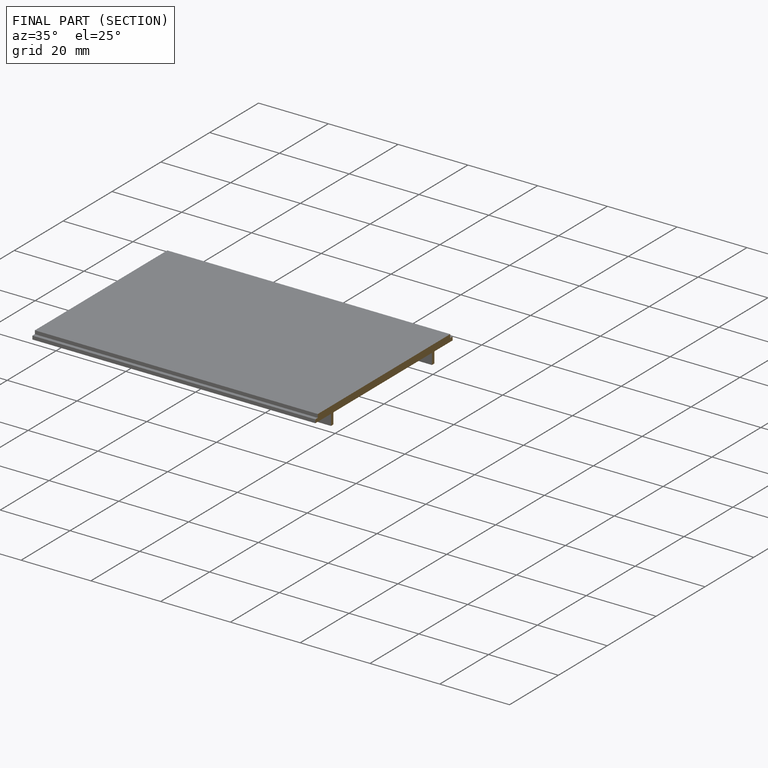
[diagram: finished part — half-section view (interior)]
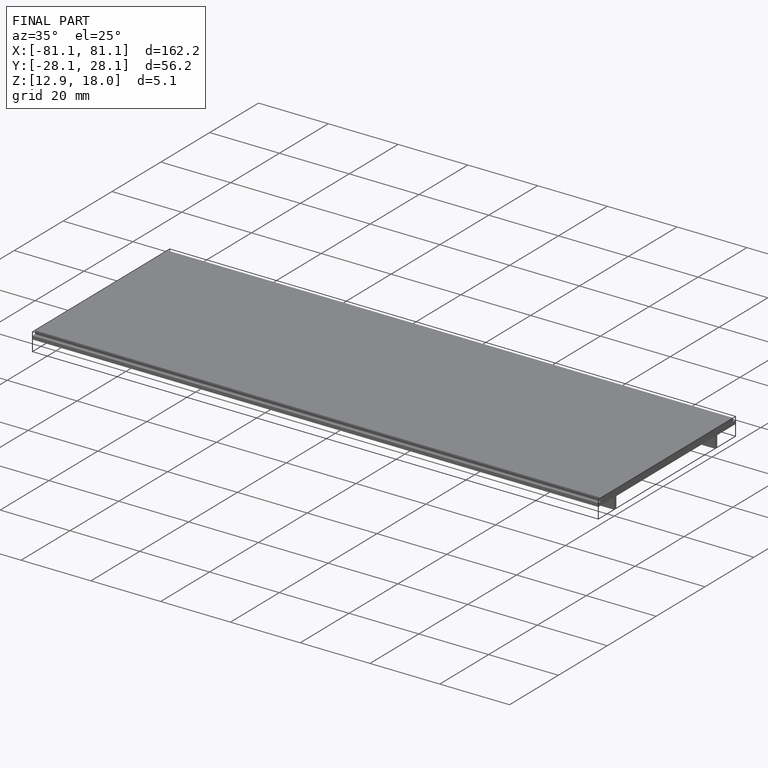
[diagram: finished part — iso view with bounding-box wireframe]
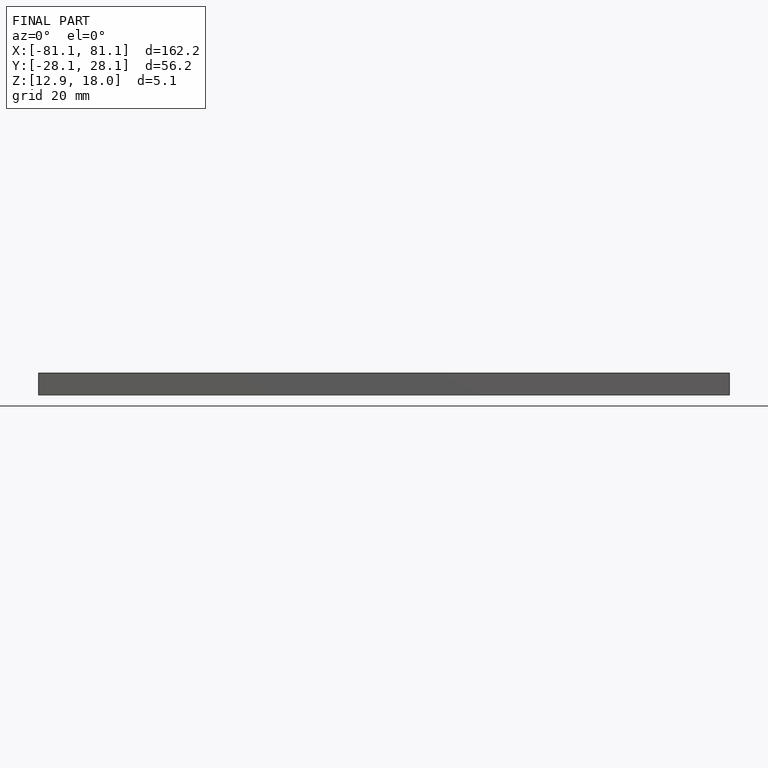
[diagram: finished part — front view with bounding-box wireframe]
